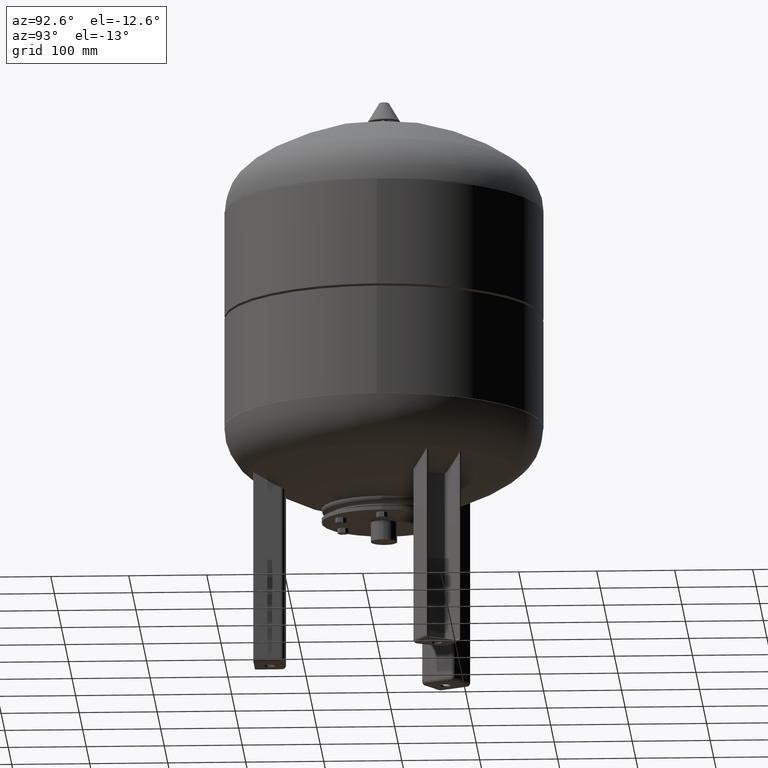
[diagram: clean part render]
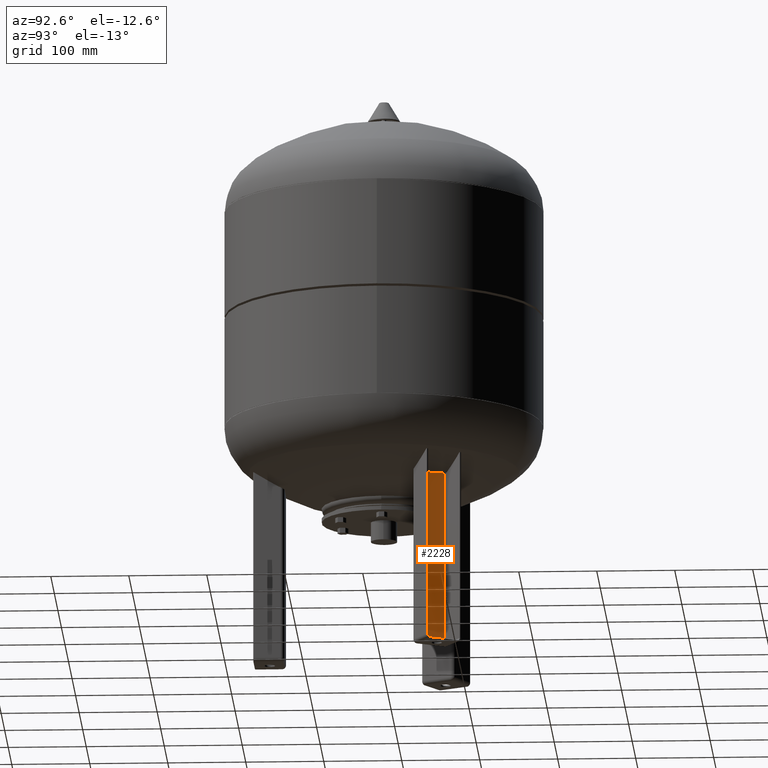
[diagram: same view with one face highlighted and labeled with its STEP entity id]
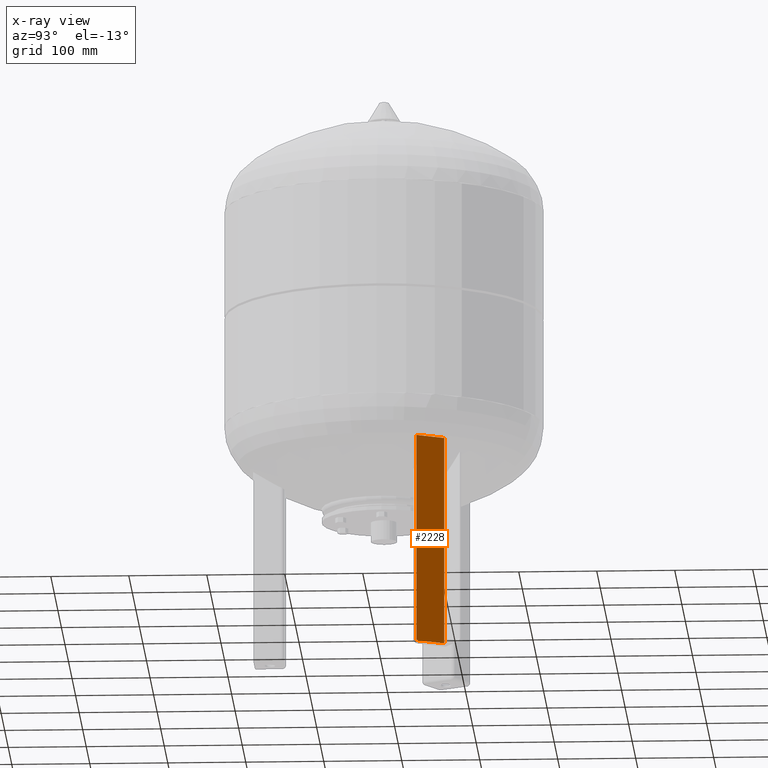
[diagram: x-ray of the same camera — body ghosted, the highlighted face saturated]
A machine part, auxiliary view. The second image highlights one B-rep face of the part: STEP entity #2228.
The next image is the same camera in x-ray: the body ghosted, the highlighted face saturated — about 0% of this face is hidden behind the body in this view.
In plain terms, the highlighted planar face has unit normal (-0.866, -0.5, -0).
Its self-contained STEP definition (entity closure, byte-faithful):
#1281=CARTESIAN_POINT('',(121.717277088192590,47.179491924311201,274.0));
#1282=VERTEX_POINT('',#1281);
#1290=CARTESIAN_POINT('',(101.717277088192590,81.820508075688750,274.0));
#1291=VERTEX_POINT('',#1290);
#1292=CARTESIAN_POINT('',(101.717277088192590,81.820508075688750,274.0));
#1293=DIRECTION('',(0.500000000000000,-0.866025403784439,0.0));
#1294=VECTOR('',#1293,40.0);
#1295=LINE('',#1292,#1294);
#1296=EDGE_CURVE('',#1291,#1282,#1295,.T.);
#1833=CARTESIAN_POINT('',(101.717277088192590,81.820508075688736,4.500000000000004));
#1834=VERTEX_POINT('',#1833);
#1842=CARTESIAN_POINT('',(121.717277088192600,47.179491924311193,4.499999999999996));
#1843=VERTEX_POINT('',#1842);
#1844=CARTESIAN_POINT('',(101.717277088192590,81.820508075688736,4.500000000000004));
#1845=DIRECTION('',(0.500000000000000,-0.866025403784438,-1.776357E-016));
#1846=VECTOR('',#1845,40.000000000000007);
#1847=LINE('',#1844,#1846);
#1848=EDGE_CURVE('',#1834,#1843,#1847,.T.);
#2201=CARTESIAN_POINT('',(121.717277088192600,47.179491924311193,4.499999999999996));
#2202=DIRECTION('',(0.0,0.0,1.0));
#2203=VECTOR('',#2202,269.500000000000000);
#2204=LINE('',#2201,#2203);
#2205=EDGE_CURVE('',#1843,#1282,#2204,.T.);
#2212=CARTESIAN_POINT('',(122.967277088192600,45.014428414850101,1.999999999999996));
#2213=DIRECTION('',(-0.866025403784439,-0.500000000000000,-5.438524E-032));
#2214=DIRECTION('',(0.500000000000000,-0.866025403784439,-1.836970E-016));
#2215=AXIS2_PLACEMENT_3D('',#2212,#2213,#2214);
#2216=PLANE('',#2215);
#2217=ORIENTED_EDGE('',*,*,#1848,.F.);
#2218=CARTESIAN_POINT('',(101.717277088192590,81.820508075688750,274.0));
#2219=DIRECTION('',(0.0,0.0,-1.0));
#2220=VECTOR('',#2219,269.500000000000000);
#2221=LINE('',#2218,#2220);
#2222=EDGE_CURVE('',#1291,#1834,#2221,.T.);
#2223=ORIENTED_EDGE('',*,*,#2222,.F.);
#2224=ORIENTED_EDGE('',*,*,#1296,.T.);
#2225=ORIENTED_EDGE('',*,*,#2205,.F.);
#2226=EDGE_LOOP('',(#2217,#2223,#2224,#2225));
#2227=FACE_OUTER_BOUND('',#2226,.T.);
#2228=ADVANCED_FACE('',(#2227),#2216,.F.);